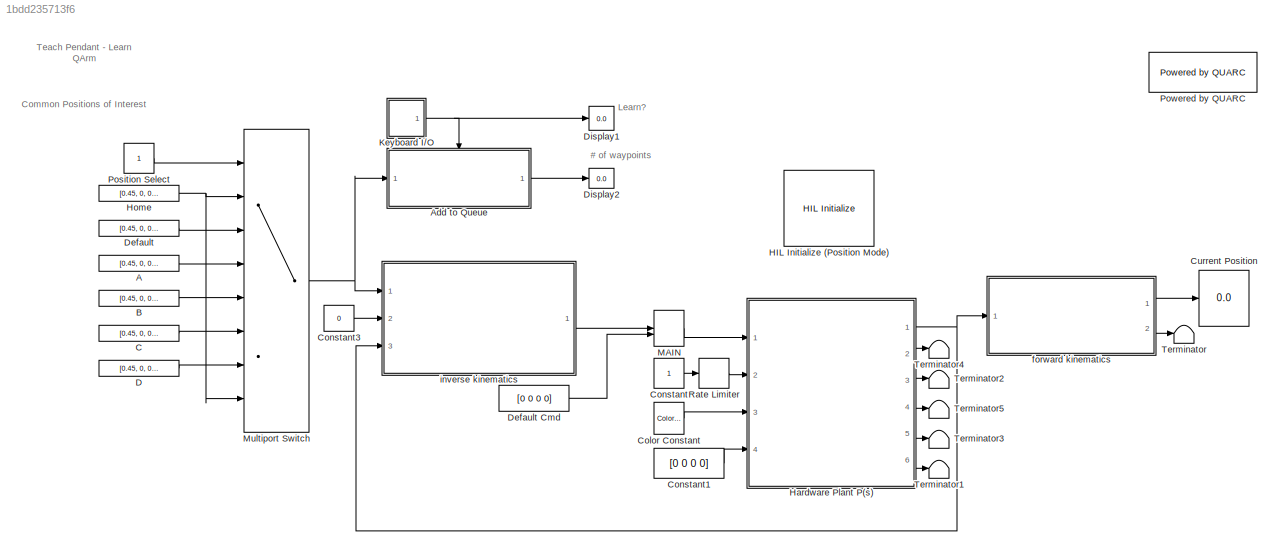
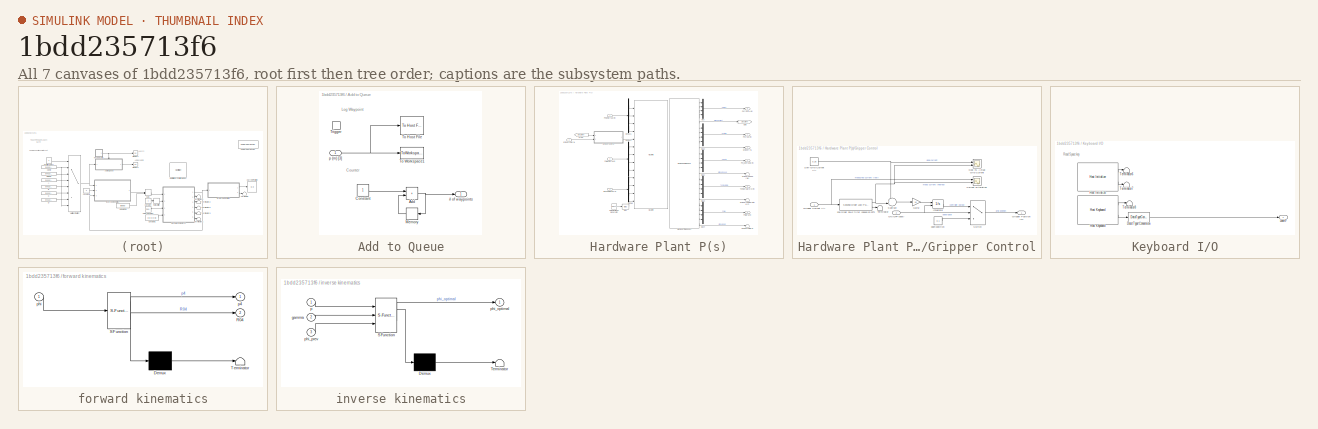
[diagram: thumbnail index - all 7 canvases of the model, root first then tree order]
MODEL slx_1bdd235713f6
KIND model
CONFIG AbsTol = auto
CONFIG EnableMultiTasking = on
CONFIG FixedStep = 1/500
CONFIG MaxStep = auto
CONFIG MinStep = auto
CONFIG RelTol = 1e-3
CONFIG SampleTimeConstraint = Unconstrained
CONFIG SolverName = ode4
CONFIG StartTime = 0.0
CONFIG StopFcn = load('data.mat');\nqueue.signals.values = data(2:4,:)';\nclear data\n
CONFIG StopTime = inf
BLOCK [Constant] A
  Value = [0.45, 0, 0.49]
BLOCK [SubSystem] Add to Queue
  Ports = [1, 1, 0, 1]
BLOCK [Outport] Add to Queue/# of waypoints
  VectorParamsAs1DForOutWhenUnconnected = off
BLOCK [Sum] Add to Queue/Add
  IconShape = rectangular
  Ports = [2, 1]
BLOCK [Constant] Add to Queue/Constant
BLOCK [Memory] Add to Queue/Memory
  InheritSampleTime = on
  NameLocation = top
BLOCK [Reference] Add to Queue/To Host File  REF=quarc_library/Sinks/To Host/To Host File
  AttributesFormatString = %<final_file_name>
  Ports = [1]
  SourceBlock = quarc_library/Sinks/To Host/To Host File
  SourceProductName = QUARC Targets
  SourceType = To Host File
BLOCK [ToWorkspace] Add to Queue/To Workspace1
  FixptAsFi = on
  MaxDataPoints = inf
  Ports = [1]
  SampleTime = -1
  SaveFormat = Structure
  VariableName = queue
BLOCK [TriggerPort] Add to Queue/Trigger
  PortDimensions = 1
  Ports = []
  StatesWhenEnabling = held
  VariantControl = Variant
BLOCK [Inport] Add to Queue/p (m) [3]
BLOCK [Constant] B
  Value = [0.45, 0, 0.49]
BLOCK [Constant] C
  Value = [0.45, 0, 0.49]
BLOCK [Reference] Color Constant  REF=quarc_library/Sources/Signals/Color Constant
  Ports = [0, 1]
  SourceBlock = quarc_library/Sources/Signals/Color Constant
  SourceProductName = QUARC Targets
  SourceType = Color Constant
BLOCK [Constant] Constant
BLOCK [Constant] Constant1
  Value = [0 0 0 0]
BLOCK [Constant] Constant3
  Value = 0
BLOCK [Display] Current Position
  Format = bank
  Ports = [1]
BLOCK [Constant] D
  Value = [0.45, 0, 0.49]
BLOCK [Constant] Default
  Value = [0.45, 0, 0.49]
BLOCK [Constant] Default Cmd
  Value = [0 0 0 0]
BLOCK [Display] Display1
  Decimation = 1
  Format = binary (Stored Integer)
  Ports = [1]
BLOCK [Display] Display2
  Decimation = 1
  Format = binary (Stored Integer)
  Ports = [1]
BLOCK [Reference] HIL Initialize (Position Mode)  REF=quarc_library/Data Acquisition/Generic/Configuration/HIL Initialize
  AttributesFormatString = %<object_name> (%<board_type>-%<board_number>)
  Ports = []
  SourceBlock = quarc_library/Data Acquisition/Generic/Configuration/HIL Initialize
  SourceProductName = QUARC Targets
  SourceType = HIL Initialize
  UserDataPersistent = on
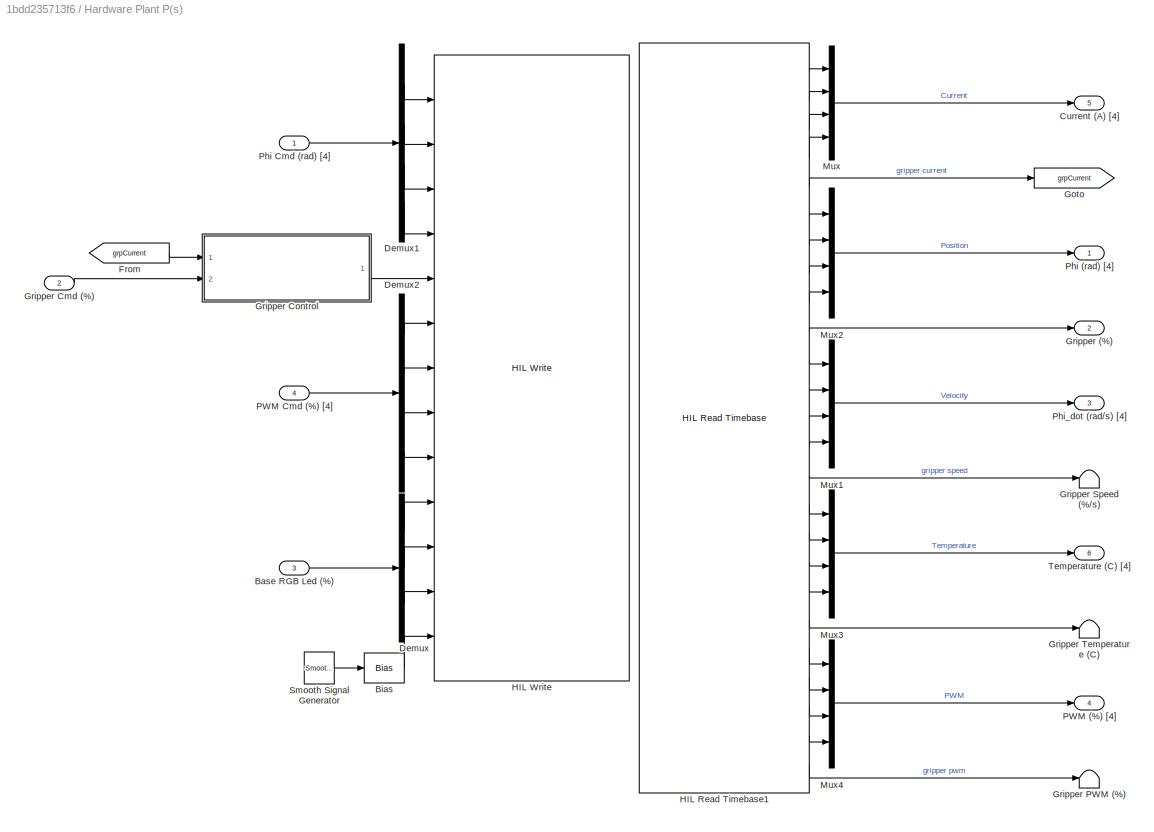
BLOCK [SubSystem] Hardware Plant P(s)
  Permissions = NoReadOrWrite
  Ports = [4, 6]
BLOCK [Inport] Hardware Plant P(s)/Base RGB Led (%)
  Port = 3
BLOCK [Bias] Hardware Plant P(s)/Bias
  Bias = 0.5
  SaturateOnIntegerOverflow = off
BLOCK [Outport] Hardware Plant P(s)/Current (A) [4]
  Port = 5
  VectorParamsAs1DForOutWhenUnconnected = off
BLOCK [Demux] Hardware Plant P(s)/Demux
  Outputs = 3
  Ports = [1, 3]
BLOCK [Demux] Hardware Plant P(s)/Demux1
  Ports = [1, 4]
BLOCK [Demux] Hardware Plant P(s)/Demux2
  Ports = [1, 4]
BLOCK [From] Hardware Plant P(s)/From
  GotoTag = grpCurrent
BLOCK [Goto] Hardware Plant P(s)/Goto
  GotoTag = grpCurrent
BLOCK [Outport] Hardware Plant P(s)/Gripper (%)
  Port = 2
  VectorParamsAs1DForOutWhenUnconnected = off
BLOCK [Inport] Hardware Plant P(s)/Gripper Cmd (%)
  Port = 2
BLOCK [SubSystem] Hardware Plant P(s)/Gripper Control
  Ports = [2, 1]
BLOCK [Reference] Hardware Plant P(s)/Gripper Control/2nd Order 25Hz filter (based on FFT)  REF=quarc_library/Continuous/Second-Order
Low-Pass Filter
  Ports = [1, 2]
  SourceBlock = quarc_library/Continuous/Second-Order\nLow-Pass Filter
  SourceProductName = QUARC Targets
  SourceType = Second-Order Low-Pass Filter
BLOCK [Scope] Hardware Plant P(s)/Gripper Control/Current Filteration
  Floating = off
  NameLocation = top
  NumInputPorts = 2
  Ports = [2]
  ScopeSpecificationString = Simulink.scopes.TimeScopeBlockCfg('CurrentConfiguration', extmgr.ConfigurationSet(extmgr.Configuration('Core','General UI',true),extmgr.Configuration('Core','Source UI',true),extmgr.Configuration('Sources','WiredSimulink',true,'DataLoggingVariableName','ScopeData5'),extmgr.Configuration('Visuals','Time Domain',true,'SerializedDisplays',{struct('MinYLimReal','-0.01447','MaxYLimReal','0.62651','YLab...<+1429ch>
BLOCK [Gain] Hardware Plant P(s)/Gripper Control/Gain2
  Gain = 10
BLOCK [Scope] Hardware Plant P(s)/Gripper Control/Goal vs. Actual Grip Current
  Floating = off
  NameLocation = top
  NumInputPorts = 2
  Ports = [2]
  ScopeSpecificationString = Simulink.scopes.TimeScopeBlockCfg('CurrentConfiguration', extmgr.ConfigurationSet(extmgr.Configuration('Core','General UI',true),extmgr.Configuration('Core','Source UI',true),extmgr.Configuration('Sources','WiredSimulink',true,'DataLoggingVariableName','ScopeData4'),extmgr.Configuration('Visuals','Time Domain',true,'SerializedDisplays',{struct('MinYLimReal','0.00229','MaxYLimReal','0.27702','YLabe...<+1426ch>
BLOCK [Inport] Hardware Plant P(s)/Gripper Control/Gripper Current (A)
BLOCK [Outport] Hardware Plant P(s)/Gripper Control/Gripper Position (%)
  VectorParamsAs1DForOutWhenUnconnected = off
BLOCK [Integrator] Hardware Plant P(s)/Gripper Control/Integrator
  ExternalReset = either
  InitialCondition = 0.1
  LimitOutput = on
  LowerSaturationLimit = 0.1
  Ports = [2, 1]
  UpperSaturationLimit = 0.6
BLOCK [Inport] Hardware Plant P(s)/Gripper Control/ON//OFF (bool)
  Port = 2
BLOCK [Constant] Hardware Plant P(s)/Gripper Control/Soft-Grip Current (A)
  Value = 0.25
BLOCK [Sum] Hardware Plant P(s)/Gripper Control/Subtract
  Inputs = +-|
  Ports = [2, 1]
BLOCK [Switch] Hardware Plant P(s)/Gripper Control/Switch
  Criteria = u2 > Threshold
  InputSameDT = off
  SaturateOnIntegerOverflow = off
BLOCK [Terminator] Hardware Plant P(s)/Gripper Control/Terminator
BLOCK [Constant] Hardware Plant P(s)/Gripper Control/open position
  Value = 0.1
BLOCK [Terminator] Hardware Plant P(s)/Gripper PWM (%)
BLOCK [Terminator] Hardware Plant P(s)/Gripper Speed (%//s)
BLOCK [Terminator] Hardware Plant P(s)/Gripper Temperature (C)
BLOCK [Reference] Hardware Plant P(s)/HIL Read Timebase1  REF=quarc_library/Data Acquisition/Generic/Timebases/HIL Read
Timebase
  AttributesFormatString = (%<object_name>)
  Ports = [0, 25]
  SourceBlock = quarc_library/Data Acquisition/Generic/Timebases/HIL Read\nTimebase
  SourceProductName = QUARC Targets
  SourceType = HIL Read Timebase
  UserDataPersistent = on
BLOCK [Reference] Hardware Plant P(s)/HIL Write  REF=quarc_library/Data Acquisition/Generic/Immediate I//O/HIL Write
  AttributesFormatString = (%<object_name>)
  Ports = [13]
  SourceBlock = quarc_library/Data Acquisition/Generic/Immediate I//O/HIL Write
  SourceProductName = QUARC Targets
  SourceType = HIL Write
  UserDataPersistent = on
BLOCK [Mux] Hardware Plant P(s)/Mux
  DisplayOption = bar
  Ports = [4, 1]
BLOCK [Mux] Hardware Plant P(s)/Mux1
  DisplayOption = bar
  Ports = [4, 1]
BLOCK [Mux] Hardware Plant P(s)/Mux2
  DisplayOption = bar
  Ports = [4, 1]
BLOCK [Mux] Hardware Plant P(s)/Mux3
  DisplayOption = bar
  Ports = [4, 1]
BLOCK [Mux] Hardware Plant P(s)/Mux4
  DisplayOption = bar
  Ports = [4, 1]
BLOCK [Outport] Hardware Plant P(s)/PWM (%) [4]
  Port = 4
  VectorParamsAs1DForOutWhenUnconnected = off
BLOCK [Inport] Hardware Plant P(s)/PWM Cmd (%) [4]
  Port = 4
BLOCK [Outport] Hardware Plant P(s)/Phi (rad) [4]
  VectorParamsAs1DForOutWhenUnconnected = off
BLOCK [Inport] Hardware Plant P(s)/Phi Cmd (rad) [4]
BLOCK [Outport] Hardware Plant P(s)/Phi_dot (rad//s) [4]
  Port = 3
  VectorParamsAs1DForOutWhenUnconnected = off
BLOCK [Reference] Hardware Plant P(s)/Smooth Signal Generator  REF=quarc_library/Sources/Signals/Smooth Signal
Generator
  Ports = [0, 1]
  SourceBlock = quarc_library/Sources/Signals/Smooth Signal\nGenerator
  SourceProductName = QUARC Targets
  SourceType = Smooth Signal Generator
BLOCK [Outport] Hardware Plant P(s)/Temperature (C) [4]
  Port = 6
  VectorParamsAs1DForOutWhenUnconnected = off
BLOCK [Constant] Home
  Value = [0.45, 0, 0.49]
BLOCK [SubSystem] Keyboard I//O
  NameLocation = top
  Ports = [0, 1]
BLOCK [DataTypeConversion] Keyboard I//O/Data Type Conversion
  OutDataTypeStr = double
  RndMeth = Floor
  SaturateOnIntegerOverflow = off
BLOCK [Reference] Keyboard I//O/Host Initialize  REF=quarc_library/Devices/Peripherals/Host/Host Initialize
  Ports = [0, 2]
  SourceBlock = quarc_library/Devices/Peripherals/Host/Host Initialize
  SourceProductName = QUARC Targets
  SourceType = Host Initialize
BLOCK [Reference] Keyboard I//O/Host Keyboard  REF=quarc_library/Devices/Peripherals/Host/Host Keyboard
  Ports = [0, 2]
  SourceBlock = quarc_library/Devices/Peripherals/Host/Host Keyboard
  SourceProductName = QUARC Targets
  SourceType = Host Keyboard
BLOCK [Outport] Keyboard I//O/Learn?
  VectorParamsAs1DForOutWhenUnconnected = off
BLOCK [Terminator] Keyboard I//O/Terminator6
BLOCK [Terminator] Keyboard I//O/Terminator7
BLOCK [Terminator] Keyboard I//O/Terminator8
BLOCK [ManualSwitch] MAIN
  CurrentSetting = 0
  NameLocation = top
BLOCK [MultiPortSwitch] Multiport Switch
  DataPortForDefault = Additional data port
  InputSameDT = off
  Inputs = 6
  Ports = [8, 1]
  SaturateOnIntegerOverflow = off
BLOCK [Constant] Position Select
  NameLocation = top
BLOCK [Reference] Powered by QUARC  REF=quarc_library/Logos/Powered by QUARC
  Ports = []
  SourceBlock = quarc_library/Logos/Powered by QUARC
  SourceProductName = QUARC Targets
  SourceType = Powered by QUARC
BLOCK [RateLimiter] Rate Limiter
  SampleTimeMode = inherited
BLOCK [Terminator] Terminator
BLOCK [Terminator] Terminator1
BLOCK [Terminator] Terminator2
BLOCK [Terminator] Terminator3
BLOCK [Terminator] Terminator4
BLOCK [Terminator] Terminator5
BLOCK [SubSystem] forward kinematics
  ErrorFcn = Stateflow.Translate.translate
  NameLocation = top
  PermitHierarchicalResolution = ExplicitOnly
  Ports = [1, 2]
  SFBlockType = MATLAB Function
  TreatAsAtomicUnit = on
BLOCK [Demux] forward kinematics/ Demux 
  Outputs = 1
  Ports = [1, 1]
BLOCK [S-Function] forward kinematics/ SFunction 
  EnableBusSupport = off
  FunctionName = sf_sfun
  PortCounts = [1 3]
  Ports = [1, 3]
  SFcnIsStateOwnerBlock = off
  SFunctionDeploymentMode = off
  Tag = Stateflow S-Function 3
BLOCK [Terminator] forward kinematics/ Terminator 
BLOCK [Outport] forward kinematics/R04
  Port = 2
  VectorParamsAs1DForOutWhenUnconnected = off
BLOCK [Outport] forward kinematics/p4
  VectorParamsAs1DForOutWhenUnconnected = off
BLOCK [Inport] forward kinematics/phi
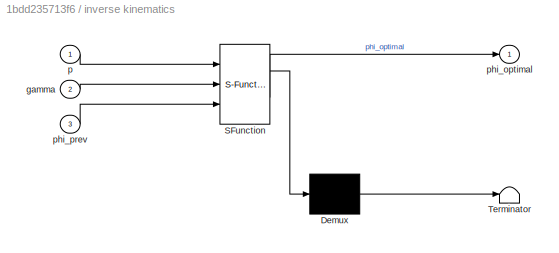
BLOCK [SubSystem] inverse kinematics
  ErrorFcn = Stateflow.Translate.translate
  NameLocation = top
  PermitHierarchicalResolution = ExplicitOnly
  Ports = [3, 1]
  SFBlockType = MATLAB Function
  TreatAsAtomicUnit = on
BLOCK [Demux] inverse kinematics/ Demux 
  Outputs = 1
  Ports = [1, 1]
BLOCK [S-Function] inverse kinematics/ SFunction 
  EnableBusSupport = off
  FunctionName = sf_sfun
  PortCounts = [3 2]
  Ports = [3, 2]
  SFcnIsStateOwnerBlock = off
  SFunctionDeploymentMode = off
  Tag = Stateflow S-Function 4
BLOCK [Terminator] inverse kinematics/ Terminator 
BLOCK [Inport] inverse kinematics/gamma
  Port = 2
BLOCK [Inport] inverse kinematics/p
BLOCK [Outport] inverse kinematics/phi_optimal
  VectorParamsAs1DForOutWhenUnconnected = off
BLOCK [Inport] inverse kinematics/phi_prev
  Port = 3
ANNOTATION (root): # of waypoints
ANNOTATION (root): Learn?
ANNOTATION (root): Teach Pendant - Learn QArm
ANNOTATION (root): Common Positions of Interest
ANNOTATION Add to Queue: Counter
ANNOTATION Add to Queue: Log Waypoint
ANNOTATION Keyboard I//O: Read Space key
LINE A:1 -> Multiport Switch:4
NET Add to Queue/Add:1 -> Add to Queue/# of waypoints:1, Add to Queue/Memory:1
LINE Add to Queue/Constant:1 -> Add to Queue/Add:1
LINE Add to Queue/Memory:1 -> Add to Queue/Add:2
NET Add to Queue/p (m) [3]:1 -> Add to Queue/To Host File:1, Add to Queue/To Workspace1:1
LINE Add to Queue:1 -> Display2:1
LINE B:1 -> Multiport Switch:5
LINE C:1 -> Multiport Switch:6
LINE Color Constant:1 -> Hardware Plant P(s):3
LINE Constant1:1 -> Hardware Plant P(s):4
LINE Constant3:1 -> inverse kinematics:2
LINE Constant:1 -> Rate Limiter:1
LINE D:1 -> Multiport Switch:7
LINE Default Cmd:1 -> MAIN:2
LINE Default:1 -> Multiport Switch:3
LINE Hardware Plant P(s)/Base RGB Led (%):1 -> Hardware Plant P(s)/Demux:1
LINE Hardware Plant P(s)/Bias:1 -> Hardware Plant P(s)/HIL Write:13
LINE Hardware Plant P(s)/Demux1:1 -> Hardware Plant P(s)/HIL Write:1
LINE Hardware Plant P(s)/Demux1:2 -> Hardware Plant P(s)/HIL Write:2
LINE Hardware Plant P(s)/Demux1:3 -> Hardware Plant P(s)/HIL Write:3
LINE Hardware Plant P(s)/Demux1:4 -> Hardware Plant P(s)/HIL Write:4
LINE Hardware Plant P(s)/Demux2:1 -> Hardware Plant P(s)/HIL Write:6
LINE Hardware Plant P(s)/Demux2:2 -> Hardware Plant P(s)/HIL Write:7
LINE Hardware Plant P(s)/Demux2:3 -> Hardware Plant P(s)/HIL Write:8
LINE Hardware Plant P(s)/Demux2:4 -> Hardware Plant P(s)/HIL Write:9
LINE Hardware Plant P(s)/Demux:1 -> Hardware Plant P(s)/HIL Write:10
LINE Hardware Plant P(s)/Demux:2 -> Hardware Plant P(s)/HIL Write:11
LINE Hardware Plant P(s)/Demux:3 -> Hardware Plant P(s)/HIL Write:12
LINE Hardware Plant P(s)/From:1 -> Hardware Plant P(s)/Gripper Control:1
LINE Hardware Plant P(s)/Gripper Cmd (%):1 -> Hardware Plant P(s)/Gripper Control:2
NET Hardware Plant P(s)/Gripper Control/2nd Order 25Hz filter (based on FFT):1 -> Hardware Plant P(s)/Gripper Control/Current Filteration:2, Hardware Plant P(s)/Gripper Control/Goal vs. Actual Grip Current:2, Hardware Plant P(s)/Gripper Control/Subtract:2
LINE Hardware Plant P(s)/Gripper Control/2nd Order 25Hz filter (based on FFT):2 -> Hardware Plant P(s)/Gripper Control/Terminator:1
LINE Hardware Plant P(s)/Gripper Control/Gain2:1 -> Hardware Plant P(s)/Gripper Control/Integrator:1
NET Hardware Plant P(s)/Gripper Control/Gripper Current (A):1 -> Hardware Plant P(s)/Gripper Control/2nd Order 25Hz filter (based on FFT):1, Hardware Plant P(s)/Gripper Control/Current Filteration:1
LINE Hardware Plant P(s)/Gripper Control/Integrator:1 -> Hardware Plant P(s)/Gripper Control/Switch:1
NET Hardware Plant P(s)/Gripper Control/ON//OFF (bool):1 -> Hardware Plant P(s)/Gripper Control/Integrator:2, Hardware Plant P(s)/Gripper Control/Switch:2
NET Hardware Plant P(s)/Gripper Control/Soft-Grip Current (A):1 -> Hardware Plant P(s)/Gripper Control/Goal vs. Actual Grip Current:1, Hardware Plant P(s)/Gripper Control/Subtract:1
LINE Hardware Plant P(s)/Gripper Control/Subtract:1 -> Hardware Plant P(s)/Gripper Control/Gain2:1
LINE Hardware Plant P(s)/Gripper Control/Switch:1 -> Hardware Plant P(s)/Gripper Control/Gripper Position (%):1
LINE Hardware Plant P(s)/Gripper Control/open position:1 -> Hardware Plant P(s)/Gripper Control/Switch:3
LINE Hardware Plant P(s)/Gripper Control:1 -> Hardware Plant P(s)/HIL Write:5
LINE Hardware Plant P(s)/HIL Read Timebase1:1 -> Hardware Plant P(s)/Mux:1
LINE Hardware Plant P(s)/HIL Read Timebase1:10 -> Hardware Plant P(s)/Gripper (%):1
LINE Hardware Plant P(s)/HIL Read Timebase1:11 -> Hardware Plant P(s)/Mux1:1
LINE Hardware Plant P(s)/HIL Read Timebase1:12 -> Hardware Plant P(s)/Mux1:2
LINE Hardware Plant P(s)/HIL Read Timebase1:13 -> Hardware Plant P(s)/Mux1:3
LINE Hardware Plant P(s)/HIL Read Timebase1:14 -> Hardware Plant P(s)/Mux1:4
LINE Hardware Plant P(s)/HIL Read Timebase1:15 -> Hardware Plant P(s)/Gripper Speed (%//s):1
LINE Hardware Plant P(s)/HIL Read Timebase1:16 -> Hardware Plant P(s)/Mux3:1
LINE Hardware Plant P(s)/HIL Read Timebase1:17 -> Hardware Plant P(s)/Mux3:2
LINE Hardware Plant P(s)/HIL Read Timebase1:18 -> Hardware Plant P(s)/Mux3:3
LINE Hardware Plant P(s)/HIL Read Timebase1:19 -> Hardware Plant P(s)/Mux3:4
LINE Hardware Plant P(s)/HIL Read Timebase1:2 -> Hardware Plant P(s)/Mux:2
LINE Hardware Plant P(s)/HIL Read Timebase1:20 -> Hardware Plant P(s)/Gripper Temperature (C):1
LINE Hardware Plant P(s)/HIL Read Timebase1:21 -> Hardware Plant P(s)/Mux4:1
LINE Hardware Plant P(s)/HIL Read Timebase1:22 -> Hardware Plant P(s)/Mux4:2
LINE Hardware Plant P(s)/HIL Read Timebase1:23 -> Hardware Plant P(s)/Mux4:3
LINE Hardware Plant P(s)/HIL Read Timebase1:24 -> Hardware Plant P(s)/Mux4:4
LINE Hardware Plant P(s)/HIL Read Timebase1:25 -> Hardware Plant P(s)/Gripper PWM (%):1
LINE Hardware Plant P(s)/HIL Read Timebase1:3 -> Hardware Plant P(s)/Mux:3
LINE Hardware Plant P(s)/HIL Read Timebase1:4 -> Hardware Plant P(s)/Mux:4
LINE Hardware Plant P(s)/HIL Read Timebase1:5 -> Hardware Plant P(s)/Goto:1
LINE Hardware Plant P(s)/HIL Read Timebase1:6 -> Hardware Plant P(s)/Mux2:1
LINE Hardware Plant P(s)/HIL Read Timebase1:7 -> Hardware Plant P(s)/Mux2:2
LINE Hardware Plant P(s)/HIL Read Timebase1:8 -> Hardware Plant P(s)/Mux2:3
LINE Hardware Plant P(s)/HIL Read Timebase1:9 -> Hardware Plant P(s)/Mux2:4
LINE Hardware Plant P(s)/Mux1:1 -> Hardware Plant P(s)/Phi_dot (rad//s) [4]:1
LINE Hardware Plant P(s)/Mux2:1 -> Hardware Plant P(s)/Phi (rad) [4]:1
LINE Hardware Plant P(s)/Mux3:1 -> Hardware Plant P(s)/Temperature (C) [4]:1
LINE Hardware Plant P(s)/Mux4:1 -> Hardware Plant P(s)/PWM (%) [4]:1
LINE Hardware Plant P(s)/Mux:1 -> Hardware Plant P(s)/Current (A) [4]:1
LINE Hardware Plant P(s)/PWM Cmd (%) [4]:1 -> Hardware Plant P(s)/Demux2:1
LINE Hardware Plant P(s)/Phi Cmd (rad) [4]:1 -> Hardware Plant P(s)/Demux1:1
LINE Hardware Plant P(s)/Smooth Signal Generator:1 -> Hardware Plant P(s)/Bias:1
NET Hardware Plant P(s):1 -> forward kinematics:1, inverse kinematics:3
LINE Hardware Plant P(s):2 -> Terminator4:1
LINE Hardware Plant P(s):3 -> Terminator2:1
LINE Hardware Plant P(s):4 -> Terminator5:1
LINE Hardware Plant P(s):5 -> Terminator3:1
LINE Hardware Plant P(s):6 -> Terminator1:1
NET Home:1 -> Multiport Switch:2, Multiport Switch:8
LINE Keyboard I//O/Data Type Conversion:1 -> Keyboard I//O/Learn?:1
LINE Keyboard I//O/Host Initialize:1 -> Keyboard I//O/Terminator6:1
LINE Keyboard I//O/Host Initialize:2 -> Keyboard I//O/Terminator7:1
LINE Keyboard I//O/Host Keyboard:1 -> Keyboard I//O/Terminator8:1
LINE Keyboard I//O/Host Keyboard:2 -> Keyboard I//O/Data Type Conversion:1
NET Keyboard I//O:1 -> Add to Queue:trigger, Display1:1
LINE MAIN:1 -> Hardware Plant P(s):1
NET Multiport Switch:1 -> Add to Queue:1, inverse kinematics:1
LINE Position Select:1 -> Multiport Switch:1
LINE Rate Limiter:1 -> Hardware Plant P(s):2
LINE forward kinematics:1 -> Current Position:1
LINE forward kinematics:2 -> Terminator:1
LINE inverse kinematics:1 -> MAIN:1
note: NET lines group one-source signal fan-out (src -> all destinations, sorted); 1:1 wires keep LINE
CHART forward kinematics states=1 transitions=1
  STATE_LABEL 'eML_blk_kernel()'
  STATE_LABEL 'SCRIPT:\nfunction [p4, R04] = qarmForwardKinematics(phi)\n\n%% QUANSER_ARM_FPK\n% v 4.0 - 4th June 2020\n\n% REFERENCE: \n% Chapter 3. Forward Kinematics\n% Robot Dynamics and Control \n% Spong, Vidyasagar\n% 1989\n\n% INPUTS:\n% phi     : Alternate joint angles vector 4 x 1\n\n% OUTPUTS:\n% p4      : End-effector frame {4} position vector expressed in base frame {0}\n% R04     : rotation matrix from end-effector ...<+1865ch>'
CHART inverse kinematics states=1 transitions=1
  STATE_LABEL 'eML_blk_kernel()'
  STATE_LABEL 'SCRIPT:\nfunction phi_optimal   = qarmInverseKinematics(p, gamma, phi_prev)\n\n%% QUANSER_ARM_IPK\n% v 4.0 - 4th June 2020\n\n% REFERENCE: \n% Chapter 4. Inverse Kinematics\n% Robot Dynamics and Control \n% Spong, Vidyasagar\n% 1989\n\n% INPUTS:\n% p        : end-effector position vector expressed in base frame {0}\n% gamma    : wrist rotation angle gamma\n\n% OUTPUTS:\n% phi_optimal : Best solution depending on p...<+2364ch>'
CHART  states=0 transitions=0
CHART  states=0 transitions=0
